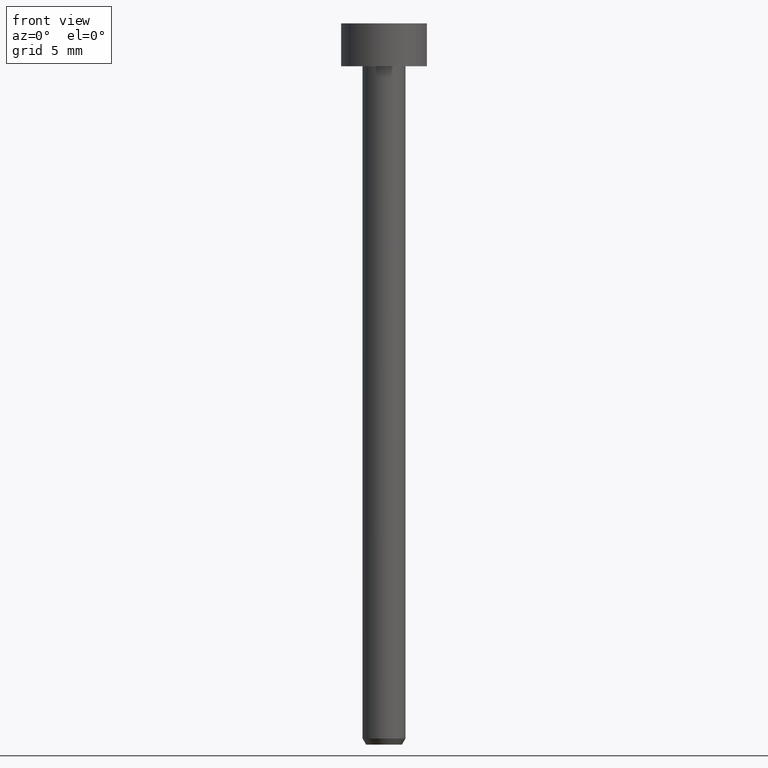
[diagram: clean part render]
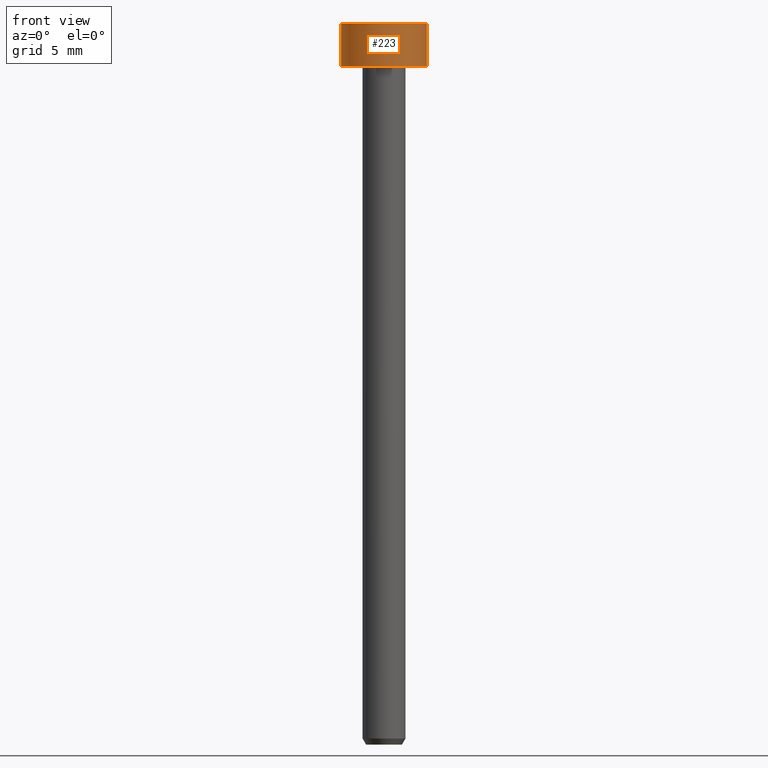
[diagram: same view with one face highlighted and labeled with its STEP entity id]
A machine part, front view. The second image highlights one B-rep face of the part: STEP entity #223.
In plain terms, the highlighted cylindrical surface (partial cylindrical patch) has radius 3 mm, axis along (-0, -0, 1).
Its self-contained STEP definition (entity closure, byte-faithful):
#27 = VECTOR ( 'NONE', #151, 1000.000000000000000 ) ;
#29 = CIRCLE ( 'NONE', #283, 3.000000000000000000 ) ;
#34 = DIRECTION ( 'NONE',  ( -0.000000000000000000, -0.000000000000000000, 1.000000000000000000 ) ) ;
#35 = VERTEX_POINT ( 'NONE', #112 ) ;
#42 = EDGE_CURVE ( 'NONE', #319, #217, #195, .T. ) ;
#44 = VERTEX_POINT ( 'NONE', #110 ) ;
#45 = CIRCLE ( 'NONE', #355, 3.000000000000000000 ) ;
#59 = CARTESIAN_POINT ( 'NONE',  ( -3.000000000000000000, 3.673940397442059868E-16, 0.000000000000000000 ) ) ;
#67 = DIRECTION ( 'NONE',  ( -0.000000000000000000, -0.000000000000000000, 1.000000000000000000 ) ) ;
#69 = VECTOR ( 'NONE', #272, 1000.000000000000000 ) ;
#70 = DIRECTION ( 'NONE',  ( -0.000000000000000000, -0.000000000000000000, 1.000000000000000000 ) ) ;
#71 = ORIENTED_EDGE ( 'NONE', *, *, #155, .T. ) ;
#106 = CARTESIAN_POINT ( 'NONE',  ( 3.000000000000000000, 0.000000000000000000, 0.000000000000000000 ) ) ;
#110 = CARTESIAN_POINT ( 'NONE',  ( 3.000000000000000000, 0.000000000000000000, -3.673940397442059868E-16 ) ) ;
#112 = CARTESIAN_POINT ( 'NONE',  ( 3.000000000000000000, 0.000000000000000000, -3.000000000000000444 ) ) ;
#121 = DIRECTION ( 'NONE',  ( 1.000000000000000000, 0.000000000000000000, 0.000000000000000000 ) ) ;
#151 = DIRECTION ( 'NONE',  ( -0.000000000000000000, -0.000000000000000000, 1.000000000000000000 ) ) ;
#155 = EDGE_CURVE ( 'NONE', #35, #44, #264, .T. ) ;
#160 = CARTESIAN_POINT ( 'NONE',  ( 0.000000000000000000, 0.000000000000000000, -3.673940397442059868E-16 ) ) ;
#169 = ORIENTED_EDGE ( 'NONE', *, *, #199, .F. ) ;
#180 = ORIENTED_EDGE ( 'NONE', *, *, #236, .T. ) ;
#195 = LINE ( 'NONE', #59, #69 ) ;
#198 = DIRECTION ( 'NONE',  ( 1.000000000000000000, 0.000000000000000000, 0.000000000000000000 ) ) ;
#199 = EDGE_CURVE ( 'NONE', #217, #44, #45, .T. ) ;
#208 = EDGE_LOOP ( 'NONE', ( #225, #180, #71, #169 ) ) ;
#217 = VERTEX_POINT ( 'NONE', #247 ) ;
#223 = ADVANCED_FACE ( 'NONE', ( #248 ), #329, .T. ) ;
#225 = ORIENTED_EDGE ( 'NONE', *, *, #42, .F. ) ;
#236 = EDGE_CURVE ( 'NONE', #319, #35, #29, .T. ) ;
#247 = CARTESIAN_POINT ( 'NONE',  ( -3.000000000000000000, 3.673940397442059868E-16, -3.673940397442059868E-16 ) ) ;
#248 = FACE_OUTER_BOUND ( 'NONE', #208, .T. ) ;
#256 = CARTESIAN_POINT ( 'NONE',  ( -3.000000000000000000, 3.673940397442059868E-16, -3.000000000000000444 ) ) ;
#264 = LINE ( 'NONE', #106, #27 ) ;
#272 = DIRECTION ( 'NONE',  ( -0.000000000000000000, -0.000000000000000000, 1.000000000000000000 ) ) ;
#280 = DIRECTION ( 'NONE',  ( 1.000000000000000000, 0.000000000000000000, 0.000000000000000000 ) ) ;
#283 = AXIS2_PLACEMENT_3D ( 'NONE', #332, #67, #198 ) ;
#309 = CARTESIAN_POINT ( 'NONE',  ( 0.000000000000000000, 0.000000000000000000, 0.000000000000000000 ) ) ;
#319 = VERTEX_POINT ( 'NONE', #256 ) ;
#329 = CYLINDRICAL_SURFACE ( 'NONE', #342, 3.000000000000000000 ) ;
#332 = CARTESIAN_POINT ( 'NONE',  ( 0.000000000000000000, 0.000000000000000000, -3.000000000000000444 ) ) ;
#342 = AXIS2_PLACEMENT_3D ( 'NONE', #309, #70, #280 ) ;
#355 = AXIS2_PLACEMENT_3D ( 'NONE', #160, #34, #121 ) ;